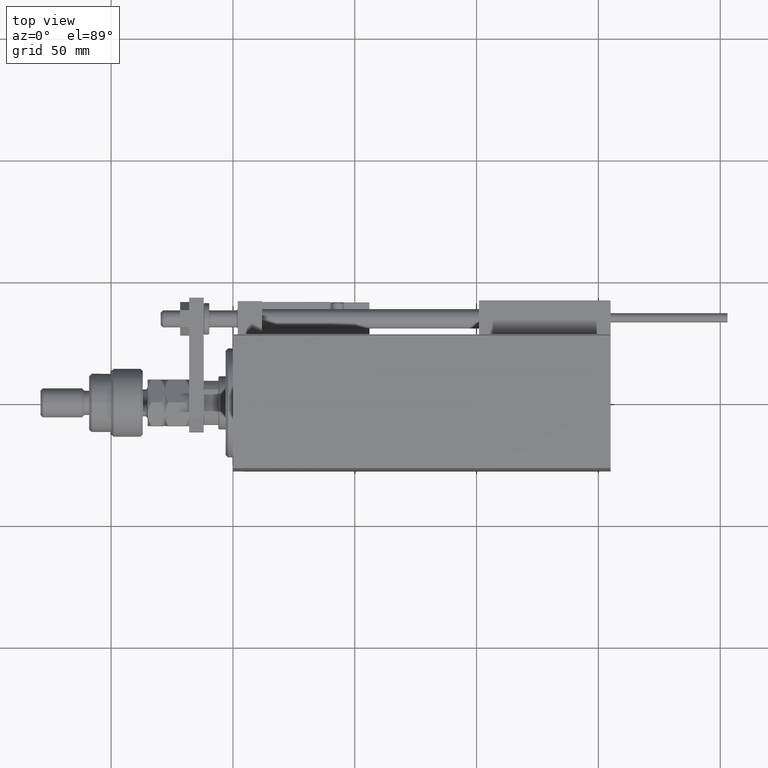
[diagram: clean part render]
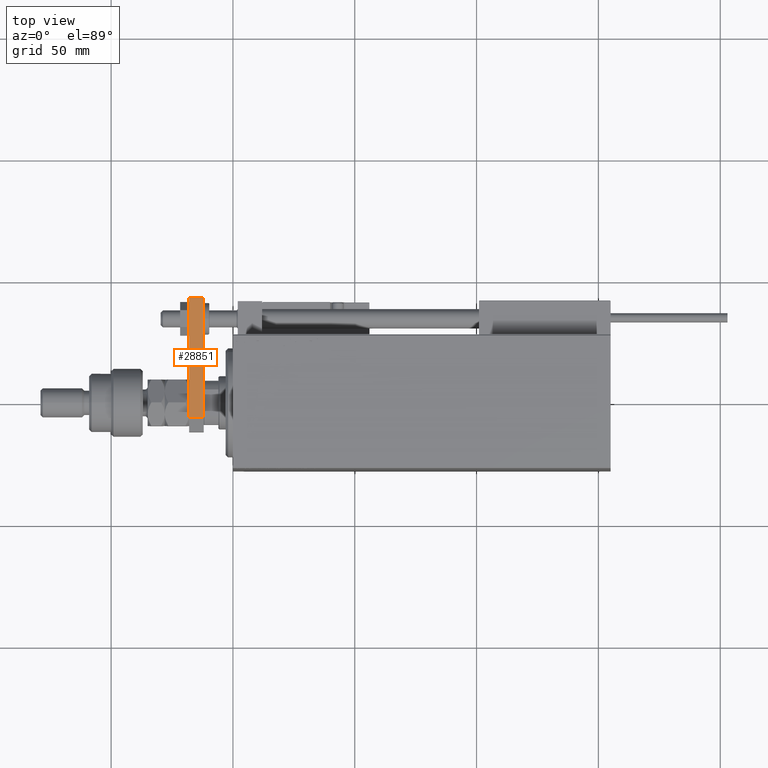
[diagram: same view with one face highlighted and labeled with its STEP entity id]
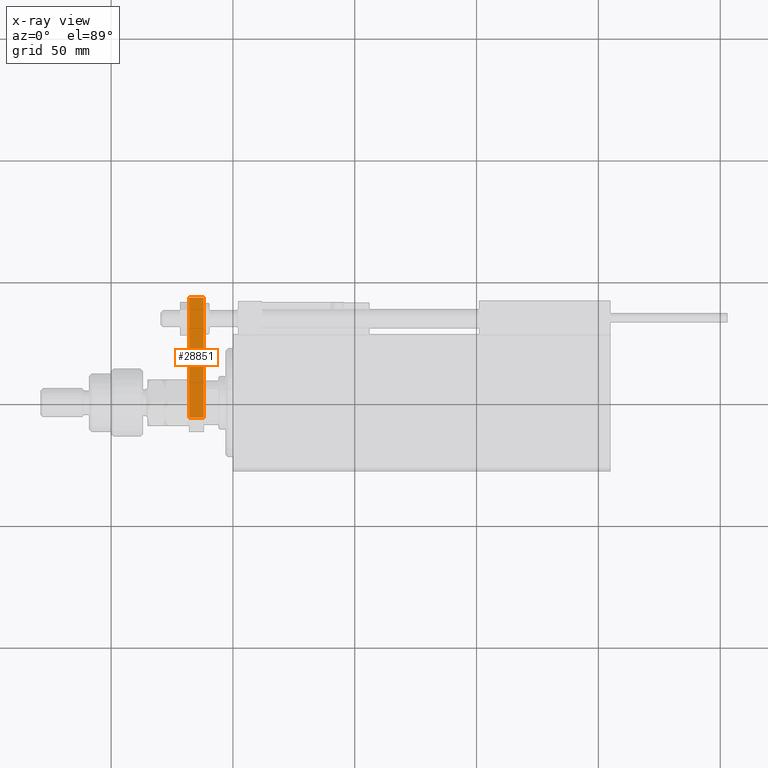
[diagram: x-ray of the same camera — body ghosted, the highlighted face saturated]
A machine part, top view. The second image highlights one B-rep face of the part: STEP entity #28851.
The next image is the same camera in x-ray: the body ghosted, the highlighted face saturated — about 0% of this face is hidden behind the body in this view.
In plain terms, the highlighted planar face has unit normal (-0, -0, -1).
Its self-contained STEP definition (entity closure, byte-faithful):
#283 = CARTESIAN_POINT ( 'NONE',  ( 12.50000000000000355, 5.659999999999991260, 0.000000000000000000 ) ) ;
#2236 = AXIS2_PLACEMENT_3D ( 'NONE', #52298, #36311, #19518 ) ;
#3836 = ORIENTED_EDGE ( 'NONE', *, *, #29944, .T. ) ;
#4713 = VECTOR ( 'NONE', #30145, 1000.000000000000000 ) ;
#6989 = EDGE_LOOP ( 'NONE', ( #46436, #3836, #38941, #33139 ) ) ;
#8507 = EDGE_CURVE ( 'NONE', #24956, #22021, #46354, .T. ) ;
#8835 = VECTOR ( 'NONE', #40030, 1000.000000000000000 ) ;
#9833 = DIRECTION ( 'NONE',  ( -6.308085367188389994E-17, 1.000000000000000000, 0.000000000000000000 ) ) ;
#11758 = LINE ( 'NONE', #23261, #8835 ) ;
#14999 = EDGE_CURVE ( 'NONE', #34381, #33717, #11758, .T. ) ;
#19518 = DIRECTION ( 'NONE',  ( 6.308085367188389994E-17, -1.000000000000000000, 0.000000000000000000 ) ) ;
#22021 = VERTEX_POINT ( 'NONE', #28136 ) ;
#22152 = LINE ( 'NONE', #30678, #4713 ) ;
#23261 = CARTESIAN_POINT ( 'NONE',  ( 12.50000000000000355, 4.814824860968089633E-32, 0.000000000000000000 ) ) ;
#23670 = EDGE_CURVE ( 'NONE', #22021, #33717, #22152, .T. ) ;
#24839 = PLANE ( 'NONE',  #2236 ) ;
#24956 = VERTEX_POINT ( 'NONE', #50659 ) ;
#26988 = VECTOR ( 'NONE', #31331, 1000.000000000000000 ) ;
#27845 = LINE ( 'NONE', #44086, #26988 ) ;
#28136 = CARTESIAN_POINT ( 'NONE',  ( 12.50000000000000000, 55.00000000000000000, 6.000000000000000000 ) ) ;
#28851 = ADVANCED_FACE ( 'NONE', ( #45069 ), #24839, .F. ) ;
#29944 = EDGE_CURVE ( 'NONE', #24956, #34381, #27845, .T. ) ;
#30145 = DIRECTION ( 'NONE',  ( -0.000000000000000000, -0.000000000000000000, -1.000000000000000000 ) ) ;
#30678 = CARTESIAN_POINT ( 'NONE',  ( 12.50000000000000000, 55.00000000000000000, 6.000000000000000000 ) ) ;
#30794 = CARTESIAN_POINT ( 'NONE',  ( 12.50000000000000000, 55.00000000000000000, 0.000000000000000000 ) ) ;
#31331 = DIRECTION ( 'NONE',  ( 0.000000000000000000, 0.000000000000000000, -1.000000000000000000 ) ) ;
#33139 = ORIENTED_EDGE ( 'NONE', *, *, #23670, .F. ) ;
#33717 = VERTEX_POINT ( 'NONE', #30794 ) ;
#34381 = VERTEX_POINT ( 'NONE', #283 ) ;
#36311 = DIRECTION ( 'NONE',  ( -1.000000000000000000, -6.308085367188389994E-17, 0.000000000000000000 ) ) ;
#38941 = ORIENTED_EDGE ( 'NONE', *, *, #14999, .T. ) ;
#40030 = DIRECTION ( 'NONE',  ( -6.308085367188389994E-17, 1.000000000000000000, 0.000000000000000000 ) ) ;
#44086 = CARTESIAN_POINT ( 'NONE',  ( 12.50000000000000355, 5.659999999999991260, 6.000000000000000000 ) ) ;
#45069 = FACE_OUTER_BOUND ( 'NONE', #6989, .T. ) ;
#46354 = LINE ( 'NONE', #50349, #50424 ) ;
#46436 = ORIENTED_EDGE ( 'NONE', *, *, #8507, .F. ) ;
#50349 = CARTESIAN_POINT ( 'NONE',  ( 12.50000000000000355, 4.814824860968089633E-32, 6.000000000000000000 ) ) ;
#50424 = VECTOR ( 'NONE', #9833, 1000.000000000000000 ) ;
#50659 = CARTESIAN_POINT ( 'NONE',  ( 12.50000000000000355, 5.659999999999991260, 6.000000000000000000 ) ) ;
#52298 = CARTESIAN_POINT ( 'NONE',  ( 12.50000000000000355, 4.814824860968089633E-32, 6.000000000000000000 ) ) ;